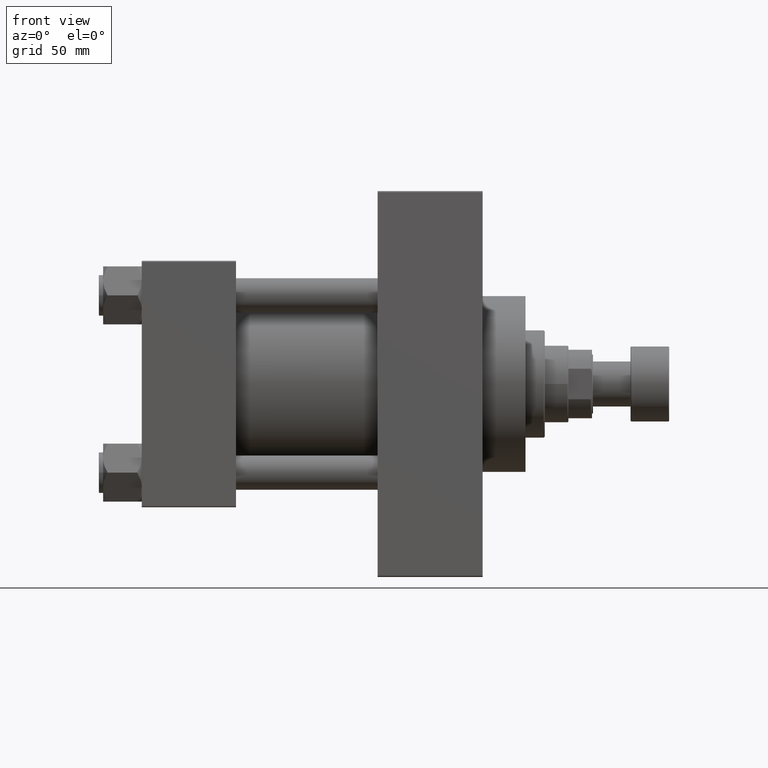
[diagram: clean part render]
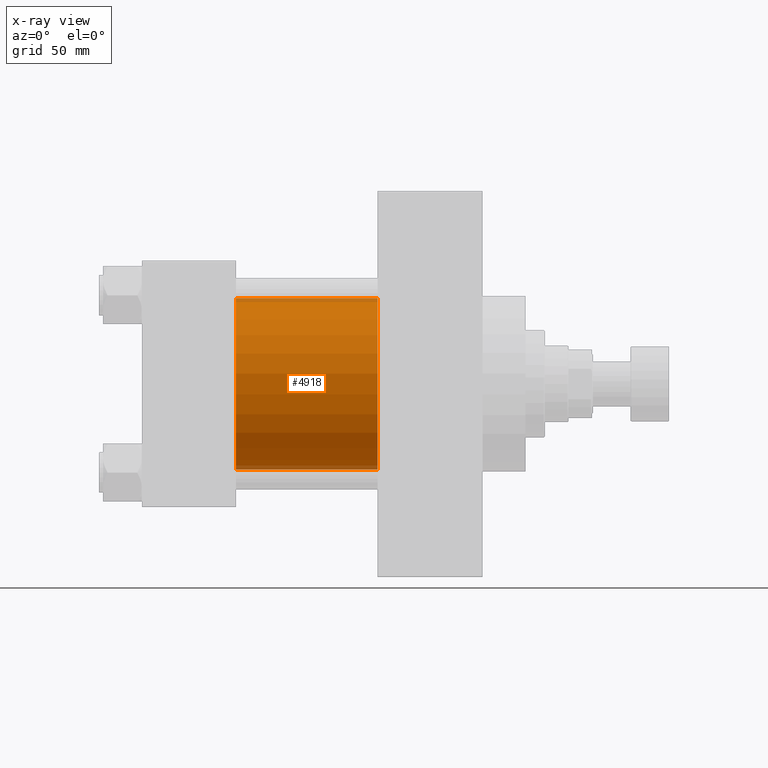
[diagram: x-ray — body ghosted, one internal face saturated and labeled with its STEP entity id]
A machine part, front view, then the same camera in x-ray: the body is ghosted and one INTERNAL B-rep face — a face not visible from any outside direction — is saturated and labeled: STEP entity #4918.
In plain terms, the highlighted cylindrical surface (partial cylindrical patch) has radius 40 mm, axis along (-1, -0, -0).
Its self-contained STEP definition (entity closure, byte-faithful):
#927 = CARTESIAN_POINT ( 'NONE',  ( 110.0000000000000000, -2.602085213965210642E-15, 40.00000000000000000 ) ) ;
#1602 = EDGE_CURVE ( 'NONE', #39238, #16920, #10984, .T. ) ;
#1742 = DIRECTION ( 'NONE',  ( 0.000000000000000000, 0.000000000000000000, -1.000000000000000000 ) ) ;
#2007 = EDGE_CURVE ( 'NONE', #16920, #8186, #44855, .T. ) ;
#2135 = CARTESIAN_POINT ( 'NONE',  ( 110.0000000000000000, -2.602085213965210642E-15, 0.000000000000000000 ) ) ;
#3925 = CARTESIAN_POINT ( 'NONE',  ( 110.0000000000000000, -2.602085213965210642E-15, 40.00000000000000000 ) ) ;
#4918 = ADVANCED_FACE ( 'NONE', ( #7062 ), #10208, .F. ) ;
#7062 = FACE_OUTER_BOUND ( 'NONE', #35920, .T. ) ;
#8186 = VERTEX_POINT ( 'NONE', #14877 ) ;
#9971 = CARTESIAN_POINT ( 'NONE',  ( 110.0000000000000000, -2.602085213965210642E-15, 0.000000000000000000 ) ) ;
#10164 = VECTOR ( 'NONE', #44876, 1000.000000000000000 ) ;
#10208 = CYLINDRICAL_SURFACE ( 'NONE', #23173, 40.00000000000000000 ) ;
#10804 = CARTESIAN_POINT ( 'NONE',  ( 110.0000000000000000, 2.296501982624201990E-15, -40.00000000000000000 ) ) ;
#10984 = LINE ( 'NONE', #3925, #21510 ) ;
#11346 = ORIENTED_EDGE ( 'NONE', *, *, #14949, .T. ) ;
#12906 = ORIENTED_EDGE ( 'NONE', *, *, #1602, .F. ) ;
#14093 = AXIS2_PLACEMENT_3D ( 'NONE', #2135, #38897, #35249 ) ;
#14443 = EDGE_CURVE ( 'NONE', #36745, #8186, #41471, .T. ) ;
#14877 = CARTESIAN_POINT ( 'NONE',  ( 44.00000000000000000, 2.296501982624201990E-15, -40.00000000000000000 ) ) ;
#14949 = EDGE_CURVE ( 'NONE', #39238, #36745, #16426, .T. ) ;
#16426 = CIRCLE ( 'NONE', #14093, 40.00000000000000000 ) ;
#16920 = VERTEX_POINT ( 'NONE', #41102 ) ;
#18630 = ORIENTED_EDGE ( 'NONE', *, *, #2007, .F. ) ;
#20697 = CARTESIAN_POINT ( 'NONE',  ( 44.00000000000000000, -2.602085213965210642E-15, 0.000000000000000000 ) ) ;
#20747 = AXIS2_PLACEMENT_3D ( 'NONE', #20697, #23639, #1742 ) ;
#21510 = VECTOR ( 'NONE', #25830, 1000.000000000000000 ) ;
#21648 = DIRECTION ( 'NONE',  ( -1.000000000000000000, -0.000000000000000000, -0.000000000000000000 ) ) ;
#23173 = AXIS2_PLACEMENT_3D ( 'NONE', #9971, #21648, #25054 ) ;
#23639 = DIRECTION ( 'NONE',  ( 1.000000000000000000, 0.000000000000000000, 0.000000000000000000 ) ) ;
#25054 = DIRECTION ( 'NONE',  ( 0.000000000000000000, 0.000000000000000000, 1.000000000000000000 ) ) ;
#25830 = DIRECTION ( 'NONE',  ( -1.000000000000000000, -0.000000000000000000, -0.000000000000000000 ) ) ;
#27593 = ORIENTED_EDGE ( 'NONE', *, *, #14443, .T. ) ;
#35249 = DIRECTION ( 'NONE',  ( 0.000000000000000000, 0.000000000000000000, -1.000000000000000000 ) ) ;
#35920 = EDGE_LOOP ( 'NONE', ( #11346, #27593, #18630, #12906 ) ) ;
#36745 = VERTEX_POINT ( 'NONE', #41543 ) ;
#38897 = DIRECTION ( 'NONE',  ( 1.000000000000000000, 0.000000000000000000, 0.000000000000000000 ) ) ;
#39238 = VERTEX_POINT ( 'NONE', #927 ) ;
#41102 = CARTESIAN_POINT ( 'NONE',  ( 44.00000000000000000, -2.602085213965210642E-15, 40.00000000000000000 ) ) ;
#41471 = LINE ( 'NONE', #10804, #10164 ) ;
#41543 = CARTESIAN_POINT ( 'NONE',  ( 110.0000000000000000, 2.296501982624201990E-15, -40.00000000000000000 ) ) ;
#44855 = CIRCLE ( 'NONE', #20747, 40.00000000000000000 ) ;
#44876 = DIRECTION ( 'NONE',  ( -1.000000000000000000, -0.000000000000000000, -0.000000000000000000 ) ) ;